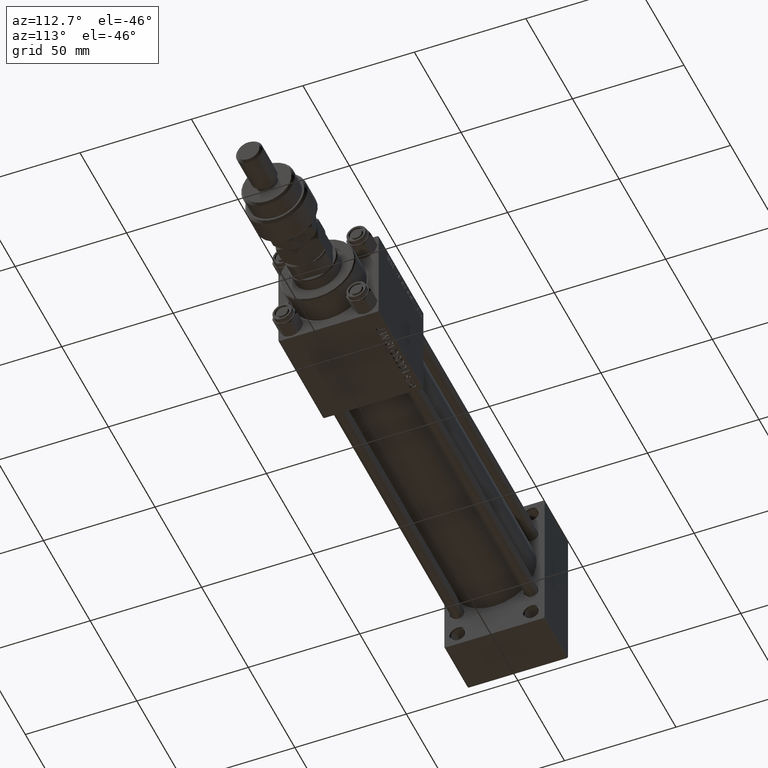
[diagram: clean part render]
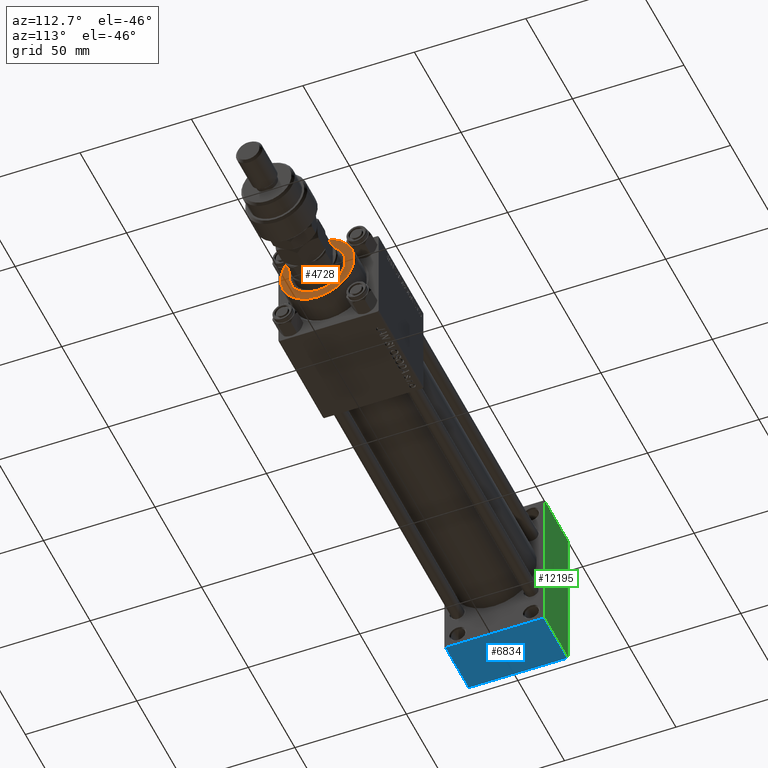
[diagram: same view with three faces highlighted in distinct colors, each labeled with its STEP entity id]
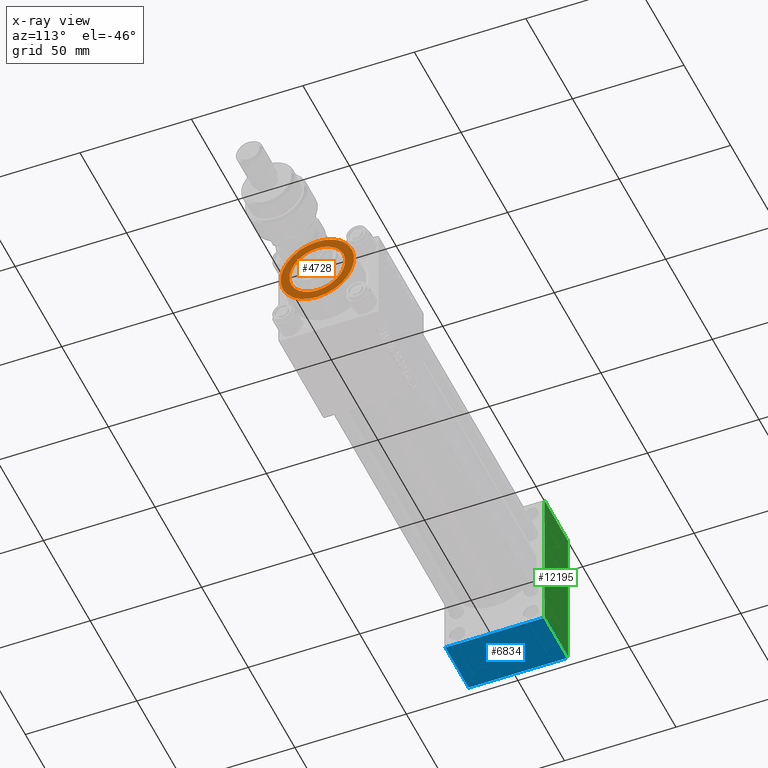
[diagram: x-ray of the same camera — body ghosted, the three highlighted faces saturated]
A machine part, auxiliary view with three faces highlighted in distinct colors.
The next image is the same camera in x-ray (body ghosted, the three faces saturated) — at least one of them is partly hidden behind the body in this view.
Their STEP definitions:

[orange] entity #4728 — the highlighted planar face has unit normal (1, 0, 0).
#124 = AXIS2_PLACEMENT_3D ( 'NONE', #40706, #36705, #4132 ) ;
#204 = VERTEX_POINT ( 'NONE', #20439 ) ;
#396 = ORIENTED_EDGE ( 'NONE', *, *, #14919, .T. ) ;
#1103 = FACE_OUTER_BOUND ( 'NONE', #17879, .T. ) ;
#4132 = DIRECTION ( 'NONE',  ( 1.000000000000000000, 0.000000000000000000, 0.000000000000000000 ) ) ;
#4728 = ADVANCED_FACE ( 'NONE', ( #37422, #1103 ), #13111, .T. ) ;
#5468 = CARTESIAN_POINT ( 'NONE',  ( 0.000000000000000000, 0.000000000000000000, 40.70000000000000284 ) ) ;
#6150 = CARTESIAN_POINT ( 'NONE',  ( 0.000000000000000000, 0.000000000000000000, 40.70000000000000284 ) ) ;
#9703 = CIRCLE ( 'NONE', #50595, 12.50000000000000000 ) ;
#10265 = DIRECTION ( 'NONE',  ( 0.000000000000000000, 0.000000000000000000, 1.000000000000000000 ) ) ;
#10656 = ORIENTED_EDGE ( 'NONE', *, *, #18705, .T. ) ;
#11471 = EDGE_CURVE ( 'NONE', #30039, #204, #27269, .T. ) ;
#13111 = PLANE ( 'NONE',  #32964 ) ;
#14497 = AXIS2_PLACEMENT_3D ( 'NONE', #6150, #18433, #38211 ) ;
#14885 = VERTEX_POINT ( 'NONE', #34017 ) ;
#14919 = EDGE_CURVE ( 'NONE', #14885, #18212, #30664, .T. ) ;
#17879 = EDGE_LOOP ( 'NONE', ( #396, #10656 ) ) ;
#17977 = DIRECTION ( 'NONE',  ( 1.000000000000000000, 0.000000000000000000, 0.000000000000000000 ) ) ;
#18212 = VERTEX_POINT ( 'NONE', #37500 ) ;
#18433 = DIRECTION ( 'NONE',  ( 0.000000000000000000, 0.000000000000000000, 1.000000000000000000 ) ) ;
#18705 = EDGE_CURVE ( 'NONE', #18212, #14885, #46992, .T. ) ;
#20439 = CARTESIAN_POINT ( 'NONE',  ( 12.50000000000000000, 0.000000000000000000, 40.70000000000000284 ) ) ;
#21930 = DIRECTION ( 'NONE',  ( 1.000000000000000000, 0.000000000000000000, -0.000000000000000000 ) ) ;
#27254 = EDGE_CURVE ( 'NONE', #204, #30039, #9703, .T. ) ;
#27269 = CIRCLE ( 'NONE', #14497, 12.50000000000000000 ) ;
#29679 = CARTESIAN_POINT ( 'NONE',  ( 0.000000000000000000, 0.000000000000000000, 40.70000000000000284 ) ) ;
#29998 = CARTESIAN_POINT ( 'NONE',  ( 0.000000000000000000, 0.000000000000000000, 40.70000000000000284 ) ) ;
#30039 = VERTEX_POINT ( 'NONE', #47990 ) ;
#30517 = DIRECTION ( 'NONE',  ( 0.000000000000000000, 0.000000000000000000, 1.000000000000000000 ) ) ;
#30664 = CIRCLE ( 'NONE', #36656, 16.49999999999999289 ) ;
#32964 = AXIS2_PLACEMENT_3D ( 'NONE', #29679, #41955, #21930 ) ;
#34017 = CARTESIAN_POINT ( 'NONE',  ( -16.49999999999999289, 0.000000000000000000, 40.70000000000000284 ) ) ;
#36656 = AXIS2_PLACEMENT_3D ( 'NONE', #29998, #30517, #17977 ) ;
#36705 = DIRECTION ( 'NONE',  ( 0.000000000000000000, 0.000000000000000000, 1.000000000000000000 ) ) ;
#37422 = FACE_BOUND ( 'NONE', #48585, .T. ) ;
#37500 = CARTESIAN_POINT ( 'NONE',  ( 16.49999999999999289, 2.051283388571816493E-15, 40.70000000000000284 ) ) ;
#38211 = DIRECTION ( 'NONE',  ( 1.000000000000000000, 0.000000000000000000, 0.000000000000000000 ) ) ;
#40706 = CARTESIAN_POINT ( 'NONE',  ( 0.000000000000000000, 0.000000000000000000, 40.70000000000000284 ) ) ;
#41955 = DIRECTION ( 'NONE',  ( 0.000000000000000000, 0.000000000000000000, 1.000000000000000000 ) ) ;
#42564 = DIRECTION ( 'NONE',  ( 1.000000000000000000, 0.000000000000000000, 0.000000000000000000 ) ) ;
#46992 = CIRCLE ( 'NONE', #124, 16.49999999999999289 ) ;
#47990 = CARTESIAN_POINT ( 'NONE',  ( -12.50000000000000000, 1.530808498934191521E-15, 40.70000000000000284 ) ) ;
#48585 = EDGE_LOOP ( 'NONE', ( #49657, #50239 ) ) ;
#49657 = ORIENTED_EDGE ( 'NONE', *, *, #27254, .F. ) ;
#50239 = ORIENTED_EDGE ( 'NONE', *, *, #11471, .F. ) ;
#50595 = AXIS2_PLACEMENT_3D ( 'NONE', #5468, #10265, #42564 ) ;

[blue] entity #6834 — the highlighted planar face has unit normal (0, 0, -1).
#1225 = VERTEX_POINT ( 'NONE', #13147 ) ;
#4024 = ORIENTED_EDGE ( 'NONE', *, *, #25213, .T. ) ;
#5926 = CARTESIAN_POINT ( 'NONE',  ( 25.00000000000000000, 22.50000000000000355, -34.99999999999999289 ) ) ;
#6040 = VERTEX_POINT ( 'NONE', #20491 ) ;
#6834 = ADVANCED_FACE ( 'NONE', ( #47010 ), #25947, .T. ) ;
#6896 = EDGE_CURVE ( 'NONE', #38266, #6040, #44054, .T. ) ;
#10721 = VECTOR ( 'NONE', #36866, 1000.000000000000000 ) ;
#12424 = ORIENTED_EDGE ( 'NONE', *, *, #32898, .T. ) ;
#12532 = DIRECTION ( 'NONE',  ( -1.000000000000000000, 0.000000000000000000, 0.000000000000000000 ) ) ;
#12586 = AXIS2_PLACEMENT_3D ( 'NONE', #5926, #45963, #50745 ) ;
#12695 = CARTESIAN_POINT ( 'NONE',  ( 25.00000000000000000, 21.99999999999999645, -34.99999999999999289 ) ) ;
#13147 = CARTESIAN_POINT ( 'NONE',  ( 0.000000000000000000, -21.99999999999998934, -35.00000000000000000 ) ) ;
#18993 = CARTESIAN_POINT ( 'NONE',  ( 25.00000000000000000, 22.50000000000000355, -34.99999999999999289 ) ) ;
#20048 = DIRECTION ( 'NONE',  ( 0.000000000000000000, -1.000000000000000000, -1.541976423090495387E-16 ) ) ;
#20491 = CARTESIAN_POINT ( 'NONE',  ( 25.00000000000000000, -21.99999999999998934, -35.00000000000000000 ) ) ;
#21590 = DIRECTION ( 'NONE',  ( 1.000000000000000000, 0.000000000000000000, 0.000000000000000000 ) ) ;
#23648 = VERTEX_POINT ( 'NONE', #39567 ) ;
#23871 = ORIENTED_EDGE ( 'NONE', *, *, #45435, .F. ) ;
#24578 = LINE ( 'NONE', #40873, #10721 ) ;
#25213 = EDGE_CURVE ( 'NONE', #23648, #38266, #32823, .T. ) ;
#25947 = PLANE ( 'NONE',  #12586 ) ;
#26583 = VECTOR ( 'NONE', #12532, 1000.000000000000000 ) ;
#29603 = CARTESIAN_POINT ( 'NONE',  ( 25.00000000000000000, 21.99999999999999645, -34.99999999999999289 ) ) ;
#32052 = ORIENTED_EDGE ( 'NONE', *, *, #6896, .T. ) ;
#32585 = CARTESIAN_POINT ( 'NONE',  ( 0.000000000000000000, -22.00000000000000355, -35.00000000000000000 ) ) ;
#32823 = LINE ( 'NONE', #29603, #48936 ) ;
#32898 = EDGE_CURVE ( 'NONE', #6040, #1225, #44313, .T. ) ;
#35405 = EDGE_LOOP ( 'NONE', ( #23871, #4024, #32052, #12424 ) ) ;
#36866 = DIRECTION ( 'NONE',  ( 0.000000000000000000, -1.000000000000000000, -1.541976423090495387E-16 ) ) ;
#38266 = VERTEX_POINT ( 'NONE', #12695 ) ;
#39567 = CARTESIAN_POINT ( 'NONE',  ( 0.000000000000000000, 21.99999999999999645, -34.99999999999999289 ) ) ;
#40873 = CARTESIAN_POINT ( 'NONE',  ( 0.000000000000000000, 22.50000000000000355, -34.99999999999999289 ) ) ;
#44054 = LINE ( 'NONE', #18993, #45818 ) ;
#44313 = LINE ( 'NONE', #32585, #26583 ) ;
#45435 = EDGE_CURVE ( 'NONE', #23648, #1225, #24578, .T. ) ;
#45818 = VECTOR ( 'NONE', #20048, 1000.000000000000000 ) ;
#45963 = DIRECTION ( 'NONE',  ( 0.000000000000000000, 1.541976423090495387E-16, -1.000000000000000000 ) ) ;
#47010 = FACE_OUTER_BOUND ( 'NONE', #35405, .T. ) ;
#48936 = VECTOR ( 'NONE', #21590, 1000.000000000000000 ) ;
#50745 = DIRECTION ( 'NONE',  ( 0.000000000000000000, 1.000000000000000000, 1.541976423090495387E-16 ) ) ;

[green] entity #12195 — the highlighted planar face has unit normal (0, 1, 0).
#415 = DIRECTION ( 'NONE',  ( 0.000000000000000000, 0.000000000000000000, -1.000000000000000000 ) ) ;
#1833 = ORIENTED_EDGE ( 'NONE', *, *, #2362, .T. ) ;
#2362 = EDGE_CURVE ( 'NONE', #45626, #42741, #29640, .T. ) ;
#3553 = VECTOR ( 'NONE', #46282, 1000.000000000000000 ) ;
#4837 = ORIENTED_EDGE ( 'NONE', *, *, #31248, .T. ) ;
#10138 = DIRECTION ( 'NONE',  ( 1.000000000000000000, 0.000000000000000000, 0.000000000000000000 ) ) ;
#12195 = ADVANCED_FACE ( 'NONE', ( #25791 ), #29263, .T. ) ;
#12429 = CARTESIAN_POINT ( 'NONE',  ( 25.00000000000000000, 22.50000000000000355, 35.00000000000000711 ) ) ;
#16819 = CARTESIAN_POINT ( 'NONE',  ( 0.000000000000000000, 22.50000000000000355, 34.49999999999999289 ) ) ;
#17519 = CARTESIAN_POINT ( 'NONE',  ( 25.00000000000000000, 22.50000000000000355, 35.00000000000000711 ) ) ;
#18018 = VECTOR ( 'NONE', #415, 1000.000000000000000 ) ;
#18300 = EDGE_CURVE ( 'NONE', #37134, #44323, #50022, .T. ) ;
#18421 = VECTOR ( 'NONE', #10138, 1000.000000000000000 ) ;
#22154 = CARTESIAN_POINT ( 'NONE',  ( 25.00000000000000000, 22.50000000000000355, 34.49999999999999289 ) ) ;
#25791 = FACE_OUTER_BOUND ( 'NONE', #46909, .T. ) ;
#26042 = CARTESIAN_POINT ( 'NONE',  ( 25.00000000000000000, 22.50000000000000355, -34.49999999999999289 ) ) ;
#26956 = CARTESIAN_POINT ( 'NONE',  ( 0.000000000000000000, 22.50000000000000355, 35.00000000000000711 ) ) ;
#29241 = LINE ( 'NONE', #12429, #18018 ) ;
#29263 = PLANE ( 'NONE',  #43455 ) ;
#29640 = LINE ( 'NONE', #22154, #18421 ) ;
#30962 = LINE ( 'NONE', #26956, #32113 ) ;
#31248 = EDGE_CURVE ( 'NONE', #42741, #37134, #29241, .T. ) ;
#31539 = CARTESIAN_POINT ( 'NONE',  ( 0.000000000000000000, 22.50000000000000355, -34.49999999999999289 ) ) ;
#32113 = VECTOR ( 'NONE', #47228, 1000.000000000000000 ) ;
#35898 = ORIENTED_EDGE ( 'NONE', *, *, #46597, .F. ) ;
#37134 = VERTEX_POINT ( 'NONE', #26042 ) ;
#42600 = DIRECTION ( 'NONE',  ( -0.000000000000000000, 1.000000000000000000, 0.000000000000000000 ) ) ;
#42741 = VERTEX_POINT ( 'NONE', #46256 ) ;
#43455 = AXIS2_PLACEMENT_3D ( 'NONE', #17519, #42600, #45530 ) ;
#44323 = VERTEX_POINT ( 'NONE', #31539 ) ;
#44503 = ORIENTED_EDGE ( 'NONE', *, *, #18300, .T. ) ;
#45530 = DIRECTION ( 'NONE',  ( 0.000000000000000000, -0.000000000000000000, 1.000000000000000000 ) ) ;
#45626 = VERTEX_POINT ( 'NONE', #16819 ) ;
#46256 = CARTESIAN_POINT ( 'NONE',  ( 25.00000000000000000, 22.50000000000000355, 34.49999999999999289 ) ) ;
#46282 = DIRECTION ( 'NONE',  ( -1.000000000000000000, 0.000000000000000000, 0.000000000000000000 ) ) ;
#46597 = EDGE_CURVE ( 'NONE', #45626, #44323, #30962, .T. ) ;
#46909 = EDGE_LOOP ( 'NONE', ( #4837, #44503, #35898, #1833 ) ) ;
#47228 = DIRECTION ( 'NONE',  ( 0.000000000000000000, 0.000000000000000000, -1.000000000000000000 ) ) ;
#50022 = LINE ( 'NONE', #50283, #3553 ) ;
#50283 = CARTESIAN_POINT ( 'NONE',  ( 25.00000000000000000, 22.50000000000000355, -34.49999999999999289 ) ) ;